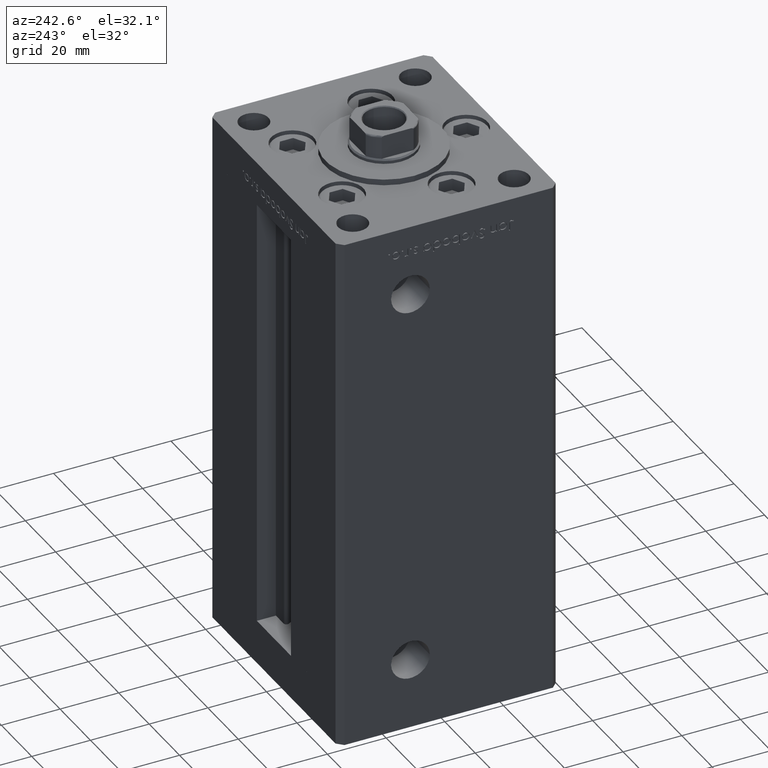
[diagram: clean part render]
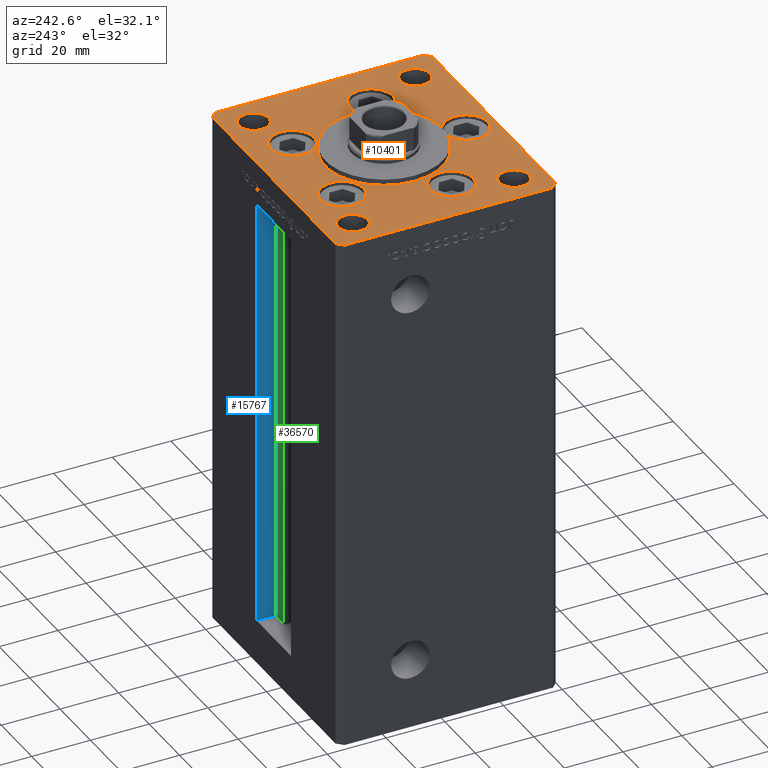
[diagram: same view with three faces highlighted in distinct colors, each labeled with its STEP entity id]
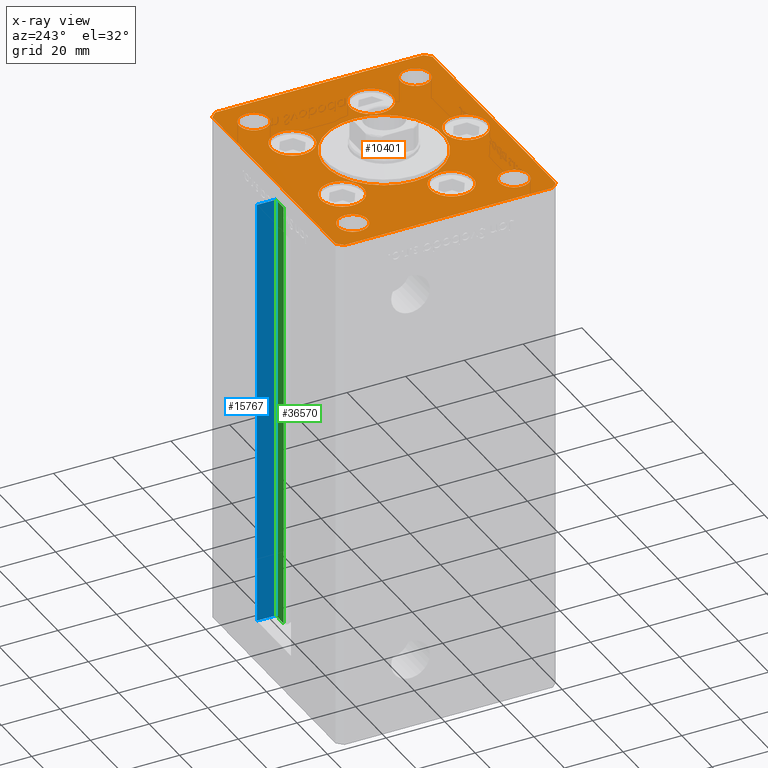
[diagram: x-ray of the same camera — body ghosted, the three highlighted faces saturated]
A machine part, auxiliary view with three faces highlighted in distinct colors.
The next image is the same camera in x-ray (body ghosted, the three faces saturated) — at least one of them is partly hidden behind the body in this view.
Their STEP definitions:

[orange] entity #10401 — the highlighted planar face has unit normal (0, 0, 1).
#31 = DIRECTION ( 'NONE',  ( 0.7071067811865474617, 0.7071067811865474617, 0.000000000000000000 ) ) ;
#75 = ORIENTED_EDGE ( 'NONE', *, *, #47170, .F. ) ;
#181 = EDGE_CURVE ( 'NONE', #37928, #32111, #33576, .T. ) ;
#229 = DIRECTION ( 'NONE',  ( 1.000000000000000000, 0.000000000000000000, 0.000000000000000000 ) ) ;
#453 = VERTEX_POINT ( 'NONE', #44616 ) ;
#454 = CIRCLE ( 'NONE', #13095, 7.249999999999999112 ) ;
#505 = DIRECTION ( 'NONE',  ( -1.000000000000000000, 0.000000000000000000, 0.000000000000000000 ) ) ;
#680 = CARTESIAN_POINT ( 'NONE',  ( -19.14865316429777664, -9.333333333333330373, 0.000000000000000000 ) ) ;
#2475 = EDGE_LOOP ( 'NONE', ( #41356, #44250 ) ) ;
#2526 = FACE_BOUND ( 'NONE', #26732, .T. ) ;
#3142 = ORIENTED_EDGE ( 'NONE', *, *, #35242, .T. ) ;
#3275 = EDGE_CURVE ( 'NONE', #43076, #13449, #52193, .T. ) ;
#3317 = DIRECTION ( 'NONE',  ( 0.000000000000000000, 0.000000000000000000, 1.000000000000000000 ) ) ;
#3474 = ORIENTED_EDGE ( 'NONE', *, *, #22825, .T. ) ;
#4418 = AXIS2_PLACEMENT_3D ( 'NONE', #34037, #37200, #13986 ) ;
#4458 = VERTEX_POINT ( 'NONE', #27502 ) ;
#5051 = VERTEX_POINT ( 'NONE', #45606 ) ;
#5064 = DIRECTION ( 'NONE',  ( 1.000000000000000000, 0.000000000000000000, 0.000000000000000000 ) ) ;
#5100 = CARTESIAN_POINT ( 'NONE',  ( -40.50000000000000711, -37.50000000000003553, 0.000000000000000000 ) ) ;
#5183 = CIRCLE ( 'NONE', #18666, 7.249999999999999112 ) ;
#5408 = EDGE_CURVE ( 'NONE', #5051, #27505, #35963, .T. ) ;
#5438 = FACE_BOUND ( 'NONE', #8538, .T. ) ;
#5691 = ORIENTED_EDGE ( 'NONE', *, *, #42461, .F. ) ;
#6230 = CARTESIAN_POINT ( 'NONE',  ( -42.50000000000000000, -35.50000000000004263, 0.000000000000000000 ) ) ;
#6318 = AXIS2_PLACEMENT_3D ( 'NONE', #39315, #38791, #43275 ) ;
#6448 = ORIENTED_EDGE ( 'NONE', *, *, #27086, .T. ) ;
#6681 = DIRECTION ( 'NONE',  ( 9.773090005503145261E-17, 1.000000000000000000, 0.000000000000000000 ) ) ;
#7164 = CARTESIAN_POINT ( 'NONE',  ( 40.50000000000001421, -37.49999999999992184, 0.000000000000000000 ) ) ;
#7232 = EDGE_LOOP ( 'NONE', ( #35742, #46311 ) ) ;
#8062 = CIRCLE ( 'NONE', #45100, 4.999999999999997335 ) ;
#8118 = VERTEX_POINT ( 'NONE', #34809 ) ;
#8151 = DIRECTION ( 'NONE',  ( 0.000000000000000000, 0.000000000000000000, 1.000000000000000000 ) ) ;
#8152 = CARTESIAN_POINT ( 'NONE',  ( -9.072913342905442491, 22.74999999999999289, 0.000000000000000000 ) ) ;
#8327 = CARTESIAN_POINT ( 'NONE',  ( -40.50000000000000000, 37.49999999999997158, 0.000000000000000000 ) ) ;
#8538 = EDGE_LOOP ( 'NONE', ( #34932, #6448 ) ) ;
#8735 = DIRECTION ( 'NONE',  ( 0.000000000000000000, 0.000000000000000000, 1.000000000000000000 ) ) ;
#8980 = DIRECTION ( 'NONE',  ( 1.000000000000000000, 0.000000000000000000, 0.000000000000000000 ) ) ;
#9139 = EDGE_CURVE ( 'NONE', #38332, #22558, #21203, .T. ) ;
#9215 = AXIS2_PLACEMENT_3D ( 'NONE', #12876, #45559, #229 ) ;
#9250 = ORIENTED_EDGE ( 'NONE', *, *, #5408, .T. ) ;
#9288 = VERTEX_POINT ( 'NONE', #37672 ) ;
#9672 = DIRECTION ( 'NONE',  ( -0.000000000000000000, 0.000000000000000000, 1.000000000000000000 ) ) ;
#10189 = LINE ( 'NONE', #6230, #17202 ) ;
#10307 = EDGE_LOOP ( 'NONE', ( #75, #27924 ) ) ;
#10401 = ADVANCED_FACE ( 'NONE', ( #34451, #50545, #34203, #29967, #42634, #13617, #2526, #29700, #14406, #34713, #5438 ), #30224, .T. ) ;
#11037 = CARTESIAN_POINT ( 'NONE',  ( 9.072913342905442491, 22.74999999999999289, 0.000000000000000000 ) ) ;
#11070 = VERTEX_POINT ( 'NONE', #12407 ) ;
#11106 = AXIS2_PLACEMENT_3D ( 'NONE', #15283, #27673, #38313 ) ;
#11293 = EDGE_LOOP ( 'NONE', ( #21438, #32993 ) ) ;
#11327 = CARTESIAN_POINT ( 'NONE',  ( 19.14865316429777664, -9.333333333333328596, 0.000000000000000000 ) ) ;
#11367 = CARTESIAN_POINT ( 'NONE',  ( -7.250000000000000000, -28.00000000000000000, 0.000000000000000000 ) ) ;
#11412 = VECTOR ( 'NONE', #27325, 1000.000000000000000 ) ;
#11513 = DIRECTION ( 'NONE',  ( 1.000000000000000000, 0.000000000000000000, 0.000000000000000000 ) ) ;
#12003 = CIRCLE ( 'NONE', #4418, 7.249999999999999112 ) ;
#12328 = VERTEX_POINT ( 'NONE', #34314 ) ;
#12407 = CARTESIAN_POINT ( 'NONE',  ( 27.50000000000000355, -27.50000000000000355, 0.000000000000000000 ) ) ;
#12540 = ORIENTED_EDGE ( 'NONE', *, *, #46966, .T. ) ;
#12599 = CARTESIAN_POINT ( 'NONE',  ( -37.50000000000000711, 27.50000000000000711, 0.000000000000000000 ) ) ;
#12737 = ORIENTED_EDGE ( 'NONE', *, *, #42029, .F. ) ;
#12783 = CIRCLE ( 'NONE', #22878, 5.000000000000000888 ) ;
#12860 = AXIS2_PLACEMENT_3D ( 'NONE', #33866, #25407, #25144 ) ;
#12876 = CARTESIAN_POINT ( 'NONE',  ( 16.32291334290544071, 22.74999999999999289, 0.000000000000000000 ) ) ;
#12881 = CARTESIAN_POINT ( 'NONE',  ( 27.50000000000000355, 27.49999999999999645, 0.000000000000000000 ) ) ;
#12946 = CIRCLE ( 'NONE', #14648, 4.999999999999997335 ) ;
#13087 = EDGE_CURVE ( 'NONE', #17284, #30587, #23813, .T. ) ;
#13095 = AXIS2_PLACEMENT_3D ( 'NONE', #35370, #35901, #48032 ) ;
#13449 = VERTEX_POINT ( 'NONE', #11037 ) ;
#13617 = FACE_BOUND ( 'NONE', #50651, .T. ) ;
#13797 = CARTESIAN_POINT ( 'NONE',  ( 32.50000000000000000, -27.50000000000000355, 0.000000000000000000 ) ) ;
#13986 = DIRECTION ( 'NONE',  ( 1.000000000000000000, 0.000000000000000000, 0.000000000000000000 ) ) ;
#14289 = VECTOR ( 'NONE', #39969, 1000.000000000000000 ) ;
#14406 = FACE_BOUND ( 'NONE', #50228, .T. ) ;
#14648 = AXIS2_PLACEMENT_3D ( 'NONE', #40084, #16576, #505 ) ;
#14890 = EDGE_CURVE ( 'NONE', #48897, #11070, #12946, .T. ) ;
#15283 = CARTESIAN_POINT ( 'NONE',  ( -32.50000000000000000, 27.50000000000000711, 0.000000000000000000 ) ) ;
#15387 = DIRECTION ( 'NONE',  ( 0.000000000000000000, 0.000000000000000000, 1.000000000000000000 ) ) ;
#15633 = CARTESIAN_POINT ( 'NONE',  ( 42.50000000000000711, -35.49999999999992895, 0.000000000000000000 ) ) ;
#16307 = DIRECTION ( 'NONE',  ( 1.000000000000000000, 0.000000000000000000, 0.000000000000000000 ) ) ;
#16314 = CARTESIAN_POINT ( 'NONE',  ( -26.39865316429777664, -9.333333333333330373, 0.000000000000000000 ) ) ;
#16491 = LINE ( 'NONE', #8327, #11412 ) ;
#16576 = DIRECTION ( 'NONE',  ( -0.000000000000000000, -0.000000000000000000, -1.000000000000000000 ) ) ;
#16992 = CIRCLE ( 'NONE', #41448, 5.000000000000004441 ) ;
#17202 = VECTOR ( 'NONE', #26263, 1000.000000000000000 ) ;
#17209 = DIRECTION ( 'NONE',  ( -0.000000000000000000, -0.000000000000000000, -1.000000000000000000 ) ) ;
#17284 = VERTEX_POINT ( 'NONE', #11327 ) ;
#17628 = EDGE_CURVE ( 'NONE', #20074, #453, #34739, .T. ) ;
#18186 = CARTESIAN_POINT ( 'NONE',  ( -32.50000000000000000, 27.50000000000000711, 0.000000000000000000 ) ) ;
#18188 = ORIENTED_EDGE ( 'NONE', *, *, #41911, .F. ) ;
#18552 = VERTEX_POINT ( 'NONE', #680 ) ;
#18666 = AXIS2_PLACEMENT_3D ( 'NONE', #30054, #21860, #42724 ) ;
#19143 = DIRECTION ( 'NONE',  ( -1.000000000000000000, -4.283267841918041508E-16, 0.000000000000000000 ) ) ;
#20047 = DIRECTION ( 'NONE',  ( 9.773090005503134168E-17, -1.000000000000000000, 0.000000000000000000 ) ) ;
#20058 = LINE ( 'NONE', #7164, #41419 ) ;
#20074 = VERTEX_POINT ( 'NONE', #38239 ) ;
#20683 = DIRECTION ( 'NONE',  ( 1.000000000000000000, 0.000000000000000000, 0.000000000000000000 ) ) ;
#20893 = CARTESIAN_POINT ( 'NONE',  ( 37.50000000000000000, 27.49999999999999645, 0.000000000000000000 ) ) ;
#21203 = CIRCLE ( 'NONE', #11106, 5.000000000000004441 ) ;
#21365 = VERTEX_POINT ( 'NONE', #39670 ) ;
#21426 = CARTESIAN_POINT ( 'NONE',  ( 37.50000000000000000, -27.50000000000000355, 0.000000000000000000 ) ) ;
#21438 = ORIENTED_EDGE ( 'NONE', *, *, #45108, .F. ) ;
#21516 = DIRECTION ( 'NONE',  ( 1.000000000000000000, 0.000000000000000000, 0.000000000000000000 ) ) ;
#21838 = CARTESIAN_POINT ( 'NONE',  ( 33.64865316429777664, -9.333333333333330373, 0.000000000000000000 ) ) ;
#21860 = DIRECTION ( 'NONE',  ( 0.000000000000000000, 0.000000000000000000, 1.000000000000000000 ) ) ;
#21885 = CARTESIAN_POINT ( 'NONE',  ( 42.50000000000001421, 35.50000000000002132, 0.000000000000000000 ) ) ;
#22141 = ORIENTED_EDGE ( 'NONE', *, *, #24335, .F. ) ;
#22233 = CARTESIAN_POINT ( 'NONE',  ( -26.39865316429777664, -9.333333333333330373, 0.000000000000000000 ) ) ;
#22558 = VERTEX_POINT ( 'NONE', #12599 ) ;
#22825 = EDGE_CURVE ( 'NONE', #29092, #40767, #10189, .T. ) ;
#22878 = AXIS2_PLACEMENT_3D ( 'NONE', #44795, #45299, #16307 ) ;
#22894 = DIRECTION ( 'NONE',  ( 0.000000000000000000, 0.000000000000000000, 1.000000000000000000 ) ) ;
#23030 = VERTEX_POINT ( 'NONE', #11367 ) ;
#23062 = EDGE_CURVE ( 'NONE', #23030, #21365, #45889, .T. ) ;
#23290 = CARTESIAN_POINT ( 'NONE',  ( 0.000000000000000000, -28.00000000000000000, 0.000000000000000000 ) ) ;
#23307 = ORIENTED_EDGE ( 'NONE', *, *, #3275, .F. ) ;
#23554 = ORIENTED_EDGE ( 'NONE', *, *, #41663, .T. ) ;
#23813 = CIRCLE ( 'NONE', #37306, 7.249999999999999112 ) ;
#23851 = CARTESIAN_POINT ( 'NONE',  ( -40.50000000000000711, -37.50000000000003553, 0.000000000000000000 ) ) ;
#24296 = AXIS2_PLACEMENT_3D ( 'NONE', #13797, #17209, #33321 ) ;
#24335 = EDGE_CURVE ( 'NONE', #13449, #43076, #454, .T. ) ;
#24628 = EDGE_CURVE ( 'NONE', #453, #4458, #16491, .T. ) ;
#24687 = EDGE_CURVE ( 'NONE', #32111, #37928, #8062, .T. ) ;
#24894 = DIRECTION ( 'NONE',  ( 0.000000000000000000, 0.000000000000000000, 1.000000000000000000 ) ) ;
#25144 = DIRECTION ( 'NONE',  ( 1.000000000000000000, 0.000000000000000000, 0.000000000000000000 ) ) ;
#25406 = DIRECTION ( 'NONE',  ( 0.000000000000000000, 0.000000000000000000, 1.000000000000000000 ) ) ;
#25407 = DIRECTION ( 'NONE',  ( 0.000000000000000000, 0.000000000000000000, 1.000000000000000000 ) ) ;
#25472 = EDGE_CURVE ( 'NONE', #8118, #49818, #27428, .T. ) ;
#26189 = CARTESIAN_POINT ( 'NONE',  ( -37.50000000000000711, -27.50000000000000355, 0.000000000000000000 ) ) ;
#26199 = DIRECTION ( 'NONE',  ( 1.000000000000000000, 0.000000000000000000, 0.000000000000000000 ) ) ;
#26263 = DIRECTION ( 'NONE',  ( 0.7071067811865487940, -0.7071067811865463515, 0.000000000000000000 ) ) ;
#26325 = CIRCLE ( 'NONE', #12860, 20.00000000000000000 ) ;
#26702 = EDGE_CURVE ( 'NONE', #22558, #38332, #16992, .T. ) ;
#26732 = EDGE_LOOP ( 'NONE', ( #44941, #46710 ) ) ;
#26753 = DIRECTION ( 'NONE',  ( 1.000000000000000000, 0.000000000000000000, 0.000000000000000000 ) ) ;
#26836 = AXIS2_PLACEMENT_3D ( 'NONE', #35988, #52066, #26753 ) ;
#27080 = VECTOR ( 'NONE', #20047, 1000.000000000000000 ) ;
#27086 = EDGE_CURVE ( 'NONE', #11070, #48897, #31878, .T. ) ;
#27130 = CARTESIAN_POINT ( 'NONE',  ( -32.50000000000000000, -27.50000000000000355, 0.000000000000000000 ) ) ;
#27191 = LINE ( 'NONE', #43802, #27080 ) ;
#27325 = DIRECTION ( 'NONE',  ( -0.7071067811865536790, -0.7071067811865414665, 0.000000000000000000 ) ) ;
#27428 = CIRCLE ( 'NONE', #44320, 20.00000000000000000 ) ;
#27502 = CARTESIAN_POINT ( 'NONE',  ( -42.50000000000000711, 35.50000000000000000, 0.000000000000000000 ) ) ;
#27505 = VERTEX_POINT ( 'NONE', #21885 ) ;
#27605 = ORIENTED_EDGE ( 'NONE', *, *, #37384, .T. ) ;
#27673 = DIRECTION ( 'NONE',  ( -0.000000000000000000, -0.000000000000000000, -1.000000000000000000 ) ) ;
#27921 = DIRECTION ( 'NONE',  ( 1.000000000000000000, 0.000000000000000000, 0.000000000000000000 ) ) ;
#27924 = ORIENTED_EDGE ( 'NONE', *, *, #43512, .F. ) ;
#29092 = VERTEX_POINT ( 'NONE', #31486 ) ;
#29700 = FACE_BOUND ( 'NONE', #2475, .T. ) ;
#29809 = DIRECTION ( 'NONE',  ( -0.000000000000000000, -0.000000000000000000, -1.000000000000000000 ) ) ;
#29967 = FACE_BOUND ( 'NONE', #7232, .T. ) ;
#30054 = CARTESIAN_POINT ( 'NONE',  ( -16.32291334290544071, 22.74999999999999289, 0.000000000000000000 ) ) ;
#30195 = CARTESIAN_POINT ( 'NONE',  ( 23.57291334290544071, 22.74999999999999289, 0.000000000000000000 ) ) ;
#30224 = PLANE ( 'NONE',  #35546 ) ;
#30262 = EDGE_LOOP ( 'NONE', ( #5691, #40998 ) ) ;
#30491 = CARTESIAN_POINT ( 'NONE',  ( 0.000000000000000000, 0.000000000000000000, 0.000000000000000000 ) ) ;
#30587 = VERTEX_POINT ( 'NONE', #21838 ) ;
#31486 = CARTESIAN_POINT ( 'NONE',  ( -42.50000000000000000, -35.50000000000004263, 0.000000000000000000 ) ) ;
#31665 = CARTESIAN_POINT ( 'NONE',  ( 40.50000000000001421, -37.49999999999992184, 0.000000000000000000 ) ) ;
#31782 = CARTESIAN_POINT ( 'NONE',  ( -20.00000000000000000, -6.938893903907228378E-15, 0.000000000000000000 ) ) ;
#31878 = CIRCLE ( 'NONE', #24296, 4.999999999999997335 ) ;
#32023 = AXIS2_PLACEMENT_3D ( 'NONE', #16314, #8151, #27921 ) ;
#32079 = VERTEX_POINT ( 'NONE', #8152 ) ;
#32111 = VERTEX_POINT ( 'NONE', #12881 ) ;
#32437 = VERTEX_POINT ( 'NONE', #50260 ) ;
#32542 = CARTESIAN_POINT ( 'NONE',  ( 0.000000000000000000, -6.938893903907228378E-15, 0.000000000000000000 ) ) ;
#32734 = CARTESIAN_POINT ( 'NONE',  ( 26.39865316429777664, -9.333333333333330373, 0.000000000000000000 ) ) ;
#32848 = VECTOR ( 'NONE', #38960, 1000.000000000000000 ) ;
#32992 = AXIS2_PLACEMENT_3D ( 'NONE', #23290, #15387, #39402 ) ;
#32993 = ORIENTED_EDGE ( 'NONE', *, *, #25472, .F. ) ;
#33024 = AXIS2_PLACEMENT_3D ( 'NONE', #32734, #8735, #8980 ) ;
#33321 = DIRECTION ( 'NONE',  ( -1.000000000000000000, 0.000000000000000000, 0.000000000000000000 ) ) ;
#33576 = CIRCLE ( 'NONE', #26836, 4.999999999999997335 ) ;
#33866 = CARTESIAN_POINT ( 'NONE',  ( 0.000000000000000000, -6.938893903907228378E-15, 0.000000000000000000 ) ) ;
#34037 = CARTESIAN_POINT ( 'NONE',  ( -16.32291334290544071, 22.74999999999999289, 0.000000000000000000 ) ) ;
#34132 = ORIENTED_EDGE ( 'NONE', *, *, #24628, .T. ) ;
#34203 = FACE_BOUND ( 'NONE', #48281, .T. ) ;
#34302 = DIRECTION ( 'NONE',  ( -1.000000000000000000, 0.000000000000000000, 0.000000000000000000 ) ) ;
#34314 = CARTESIAN_POINT ( 'NONE',  ( -33.64865316429777664, -9.333333333333328596, 0.000000000000000000 ) ) ;
#34451 = FACE_BOUND ( 'NONE', #11293, .T. ) ;
#34713 = FACE_OUTER_BOUND ( 'NONE', #49389, .T. ) ;
#34739 = LINE ( 'NONE', #42660, #49130 ) ;
#34807 = AXIS2_PLACEMENT_3D ( 'NONE', #22233, #25406, #26199 ) ;
#34809 = CARTESIAN_POINT ( 'NONE',  ( 20.00000000000000000, -4.489600305612522259E-15, 0.000000000000000000 ) ) ;
#34932 = ORIENTED_EDGE ( 'NONE', *, *, #14890, .T. ) ;
#35242 = EDGE_CURVE ( 'NONE', #40767, #35466, #36009, .T. ) ;
#35370 = CARTESIAN_POINT ( 'NONE',  ( 16.32291334290544071, 22.74999999999999289, 0.000000000000000000 ) ) ;
#35466 = VERTEX_POINT ( 'NONE', #31665 ) ;
#35526 = CIRCLE ( 'NONE', #49870, 5.000000000000000888 ) ;
#35546 = AXIS2_PLACEMENT_3D ( 'NONE', #30491, #9672, #21516 ) ;
#35742 = ORIENTED_EDGE ( 'NONE', *, *, #47879, .F. ) ;
#35901 = DIRECTION ( 'NONE',  ( 0.000000000000000000, 0.000000000000000000, 1.000000000000000000 ) ) ;
#35963 = LINE ( 'NONE', #15633, #37114 ) ;
#35988 = CARTESIAN_POINT ( 'NONE',  ( 32.50000000000000000, 27.49999999999999645, 0.000000000000000000 ) ) ;
#36009 = LINE ( 'NONE', #23851, #14289 ) ;
#37060 = CIRCLE ( 'NONE', #32023, 7.249999999999999112 ) ;
#37114 = VECTOR ( 'NONE', #6681, 1000.000000000000000 ) ;
#37200 = DIRECTION ( 'NONE',  ( 0.000000000000000000, 0.000000000000000000, 1.000000000000000000 ) ) ;
#37203 = EDGE_CURVE ( 'NONE', #18552, #12328, #37060, .T. ) ;
#37306 = AXIS2_PLACEMENT_3D ( 'NONE', #37558, #24894, #20683 ) ;
#37384 = EDGE_CURVE ( 'NONE', #27505, #20074, #38696, .T. ) ;
#37541 = ORIENTED_EDGE ( 'NONE', *, *, #17628, .T. ) ;
#37558 = CARTESIAN_POINT ( 'NONE',  ( 26.39865316429777664, -9.333333333333330373, 0.000000000000000000 ) ) ;
#37672 = CARTESIAN_POINT ( 'NONE',  ( -23.57291334290544071, 22.74999999999999289, 0.000000000000000000 ) ) ;
#37928 = VERTEX_POINT ( 'NONE', #20893 ) ;
#38190 = CARTESIAN_POINT ( 'NONE',  ( 42.50000000000001421, 35.50000000000002132, 0.000000000000000000 ) ) ;
#38239 = CARTESIAN_POINT ( 'NONE',  ( 40.50000000000000711, 37.50000000000000711, 0.000000000000000000 ) ) ;
#38313 = DIRECTION ( 'NONE',  ( -1.000000000000000000, 0.000000000000000000, 0.000000000000000000 ) ) ;
#38332 = VERTEX_POINT ( 'NONE', #43966 ) ;
#38696 = LINE ( 'NONE', #38190, #32848 ) ;
#38791 = DIRECTION ( 'NONE',  ( 0.000000000000000000, 0.000000000000000000, 1.000000000000000000 ) ) ;
#38960 = DIRECTION ( 'NONE',  ( -0.7071067811865524577, 0.7071067811865426878, 0.000000000000000000 ) ) ;
#39315 = CARTESIAN_POINT ( 'NONE',  ( 0.000000000000000000, -28.00000000000000000, 0.000000000000000000 ) ) ;
#39402 = DIRECTION ( 'NONE',  ( 1.000000000000000000, 0.000000000000000000, 0.000000000000000000 ) ) ;
#39670 = CARTESIAN_POINT ( 'NONE',  ( 7.250000000000000000, -28.00000000000000000, 0.000000000000000000 ) ) ;
#39969 = DIRECTION ( 'NONE',  ( 1.000000000000000000, 1.370645709413773283E-15, 0.000000000000000000 ) ) ;
#40084 = CARTESIAN_POINT ( 'NONE',  ( 32.50000000000000000, -27.50000000000000355, 0.000000000000000000 ) ) ;
#40515 = CARTESIAN_POINT ( 'NONE',  ( 32.50000000000000000, 27.49999999999999645, 0.000000000000000000 ) ) ;
#40767 = VERTEX_POINT ( 'NONE', #5100 ) ;
#40998 = ORIENTED_EDGE ( 'NONE', *, *, #23062, .F. ) ;
#41356 = ORIENTED_EDGE ( 'NONE', *, *, #181, .F. ) ;
#41419 = VECTOR ( 'NONE', #31, 1000.000000000000114 ) ;
#41448 = AXIS2_PLACEMENT_3D ( 'NONE', #18186, #29809, #34302 ) ;
#41663 = EDGE_CURVE ( 'NONE', #4458, #29092, #27191, .T. ) ;
#41911 = EDGE_CURVE ( 'NONE', #50035, #32437, #35526, .T. ) ;
#42029 = EDGE_CURVE ( 'NONE', #32437, #50035, #12783, .T. ) ;
#42058 = ORIENTED_EDGE ( 'NONE', *, *, #50907, .F. ) ;
#42377 = CIRCLE ( 'NONE', #34807, 7.249999999999999112 ) ;
#42461 = EDGE_CURVE ( 'NONE', #21365, #23030, #50698, .T. ) ;
#42489 = ORIENTED_EDGE ( 'NONE', *, *, #37203, .F. ) ;
#42634 = FACE_BOUND ( 'NONE', #30262, .T. ) ;
#42660 = CARTESIAN_POINT ( 'NONE',  ( 40.50000000000000711, 37.50000000000000711, 0.000000000000000000 ) ) ;
#42724 = DIRECTION ( 'NONE',  ( 1.000000000000000000, 0.000000000000000000, 0.000000000000000000 ) ) ;
#43076 = VERTEX_POINT ( 'NONE', #30195 ) ;
#43275 = DIRECTION ( 'NONE',  ( 1.000000000000000000, 0.000000000000000000, 0.000000000000000000 ) ) ;
#43484 = DIRECTION ( 'NONE',  ( 1.000000000000000000, 0.000000000000000000, 0.000000000000000000 ) ) ;
#43512 = EDGE_CURVE ( 'NONE', #9288, #32079, #12003, .T. ) ;
#43802 = CARTESIAN_POINT ( 'NONE',  ( -42.50000000000000711, 35.50000000000000000, 0.000000000000000000 ) ) ;
#43966 = CARTESIAN_POINT ( 'NONE',  ( -27.50000000000000000, 27.50000000000000711, 0.000000000000000000 ) ) ;
#44250 = ORIENTED_EDGE ( 'NONE', *, *, #24687, .F. ) ;
#44320 = AXIS2_PLACEMENT_3D ( 'NONE', #32542, #44676, #5064 ) ;
#44616 = CARTESIAN_POINT ( 'NONE',  ( -40.50000000000000000, 37.49999999999997158, 0.000000000000000000 ) ) ;
#44676 = DIRECTION ( 'NONE',  ( 0.000000000000000000, 0.000000000000000000, 1.000000000000000000 ) ) ;
#44795 = CARTESIAN_POINT ( 'NONE',  ( -32.50000000000000000, -27.50000000000000355, 0.000000000000000000 ) ) ;
#44941 = ORIENTED_EDGE ( 'NONE', *, *, #9139, .T. ) ;
#45100 = AXIS2_PLACEMENT_3D ( 'NONE', #40515, #3317, #11513 ) ;
#45108 = EDGE_CURVE ( 'NONE', #49818, #8118, #26325, .T. ) ;
#45299 = DIRECTION ( 'NONE',  ( 0.000000000000000000, 0.000000000000000000, 1.000000000000000000 ) ) ;
#45559 = DIRECTION ( 'NONE',  ( 0.000000000000000000, 0.000000000000000000, 1.000000000000000000 ) ) ;
#45606 = CARTESIAN_POINT ( 'NONE',  ( 42.50000000000000711, -35.49999999999992895, 0.000000000000000000 ) ) ;
#45889 = CIRCLE ( 'NONE', #6318, 7.250000000000000000 ) ;
#46311 = ORIENTED_EDGE ( 'NONE', *, *, #13087, .F. ) ;
#46710 = ORIENTED_EDGE ( 'NONE', *, *, #26702, .T. ) ;
#46966 = EDGE_CURVE ( 'NONE', #35466, #5051, #20058, .T. ) ;
#47170 = EDGE_CURVE ( 'NONE', #32079, #9288, #5183, .T. ) ;
#47879 = EDGE_CURVE ( 'NONE', #30587, #17284, #50733, .T. ) ;
#48032 = DIRECTION ( 'NONE',  ( 1.000000000000000000, 0.000000000000000000, 0.000000000000000000 ) ) ;
#48281 = EDGE_LOOP ( 'NONE', ( #23307, #22141 ) ) ;
#48897 = VERTEX_POINT ( 'NONE', #21426 ) ;
#49130 = VECTOR ( 'NONE', #19143, 1000.000000000000000 ) ;
#49389 = EDGE_LOOP ( 'NONE', ( #3474, #3142, #12540, #9250, #27605, #37541, #34132, #23554 ) ) ;
#49818 = VERTEX_POINT ( 'NONE', #31782 ) ;
#49870 = AXIS2_PLACEMENT_3D ( 'NONE', #27130, #22894, #43484 ) ;
#50035 = VERTEX_POINT ( 'NONE', #26189 ) ;
#50228 = EDGE_LOOP ( 'NONE', ( #12737, #18188 ) ) ;
#50260 = CARTESIAN_POINT ( 'NONE',  ( -27.50000000000000000, -27.50000000000000355, 0.000000000000000000 ) ) ;
#50545 = FACE_BOUND ( 'NONE', #10307, .T. ) ;
#50651 = EDGE_LOOP ( 'NONE', ( #42489, #42058 ) ) ;
#50698 = CIRCLE ( 'NONE', #32992, 7.250000000000000000 ) ;
#50733 = CIRCLE ( 'NONE', #33024, 7.249999999999999112 ) ;
#50907 = EDGE_CURVE ( 'NONE', #12328, #18552, #42377, .T. ) ;
#52066 = DIRECTION ( 'NONE',  ( 0.000000000000000000, 0.000000000000000000, 1.000000000000000000 ) ) ;
#52193 = CIRCLE ( 'NONE', #9215, 7.249999999999999112 ) ;

[blue] entity #15767 — the highlighted planar face has unit normal (1, 0, 0).
#521 = EDGE_CURVE ( 'NONE', #50308, #47724, #8737, .T. ) ;
#4434 = EDGE_LOOP ( 'NONE', ( #21197, #13789, #12547, #20012 ) ) ;
#4958 = CARTESIAN_POINT ( 'NONE',  ( 11.25000000000000000, 30.99999999999999289, 0.000000000000000000 ) ) ;
#5052 = VERTEX_POINT ( 'NONE', #17618 ) ;
#8737 = LINE ( 'NONE', #48331, #31889 ) ;
#12547 = ORIENTED_EDGE ( 'NONE', *, *, #39723, .T. ) ;
#13789 = ORIENTED_EDGE ( 'NONE', *, *, #39106, .F. ) ;
#15767 = ADVANCED_FACE ( 'NONE', ( #24756 ), #25005, .F. ) ;
#16853 = VECTOR ( 'NONE', #30539, 1000.000000000000000 ) ;
#17618 = CARTESIAN_POINT ( 'NONE',  ( 11.25000000000000000, 30.99999999999999289, 0.000000000000000000 ) ) ;
#20012 = ORIENTED_EDGE ( 'NONE', *, *, #521, .F. ) ;
#20091 = CARTESIAN_POINT ( 'NONE',  ( 11.24999999999999289, 37.50000000000000000, 148.5000000000000000 ) ) ;
#21197 = ORIENTED_EDGE ( 'NONE', *, *, #41633, .F. ) ;
#22266 = CARTESIAN_POINT ( 'NONE',  ( 11.25000000000000000, 37.50000000000000000, 0.000000000000000000 ) ) ;
#23221 = LINE ( 'NONE', #28243, #34657 ) ;
#24756 = FACE_OUTER_BOUND ( 'NONE', #4434, .T. ) ;
#24884 = LINE ( 'NONE', #40989, #25323 ) ;
#25005 = PLANE ( 'NONE',  #38223 ) ;
#25172 = VERTEX_POINT ( 'NONE', #22266 ) ;
#25323 = VECTOR ( 'NONE', #38344, 1000.000000000000000 ) ;
#28243 = CARTESIAN_POINT ( 'NONE',  ( 11.25000000000000000, 37.50000000000000000, 0.000000000000000000 ) ) ;
#30539 = DIRECTION ( 'NONE',  ( 0.000000000000000000, 1.000000000000000000, 0.000000000000000000 ) ) ;
#31889 = VECTOR ( 'NONE', #44364, 1000.000000000000000 ) ;
#31934 = DIRECTION ( 'NONE',  ( -0.000000000000000000, -0.000000000000000000, 1.000000000000000000 ) ) ;
#33197 = DIRECTION ( 'NONE',  ( 1.000000000000000000, -0.000000000000000000, 0.000000000000000000 ) ) ;
#34657 = VECTOR ( 'NONE', #31934, 1000.000000000000000 ) ;
#35393 = CARTESIAN_POINT ( 'NONE',  ( 11.25000000000000000, 30.99999999999999289, 148.5000000000000000 ) ) ;
#38223 = AXIS2_PLACEMENT_3D ( 'NONE', #4958, #33197, #41115 ) ;
#38344 = DIRECTION ( 'NONE',  ( -0.000000000000000000, -0.000000000000000000, 1.000000000000000000 ) ) ;
#39106 = EDGE_CURVE ( 'NONE', #5052, #25172, #42936, .T. ) ;
#39723 = EDGE_CURVE ( 'NONE', #5052, #47724, #24884, .T. ) ;
#40989 = CARTESIAN_POINT ( 'NONE',  ( 11.25000000000000000, 30.99999999999999289, 0.000000000000000000 ) ) ;
#41115 = DIRECTION ( 'NONE',  ( 0.000000000000000000, 0.000000000000000000, -1.000000000000000000 ) ) ;
#41633 = EDGE_CURVE ( 'NONE', #25172, #50308, #23221, .T. ) ;
#42936 = LINE ( 'NONE', #50596, #16853 ) ;
#44364 = DIRECTION ( 'NONE',  ( -0.000000000000000000, -1.000000000000000000, 0.000000000000000000 ) ) ;
#47724 = VERTEX_POINT ( 'NONE', #35393 ) ;
#48331 = CARTESIAN_POINT ( 'NONE',  ( 11.25000000000000000, 0.000000000000000000, 148.5000000000000000 ) ) ;
#50308 = VERTEX_POINT ( 'NONE', #20091 ) ;
#50596 = CARTESIAN_POINT ( 'NONE',  ( 11.25000000000000000, 30.99999999999999289, 0.000000000000000000 ) ) ;

[green] entity #36570 — the highlighted planar face has unit normal (0, -1, 0).
#2550 = ORIENTED_EDGE ( 'NONE', *, *, #18018, .T. ) ;
#3653 = DIRECTION ( 'NONE',  ( 0.000000000000000000, -0.000000000000000000, -1.000000000000000000 ) ) ;
#5052 = VERTEX_POINT ( 'NONE', #17618 ) ;
#6396 = CARTESIAN_POINT ( 'NONE',  ( 6.183333333333999704, 30.99999999999999289, 0.000000000000000000 ) ) ;
#6854 = ORIENTED_EDGE ( 'NONE', *, *, #39723, .F. ) ;
#7387 = VECTOR ( 'NONE', #33097, 1000.000000000000000 ) ;
#8895 = VERTEX_POINT ( 'NONE', #42871 ) ;
#9565 = CARTESIAN_POINT ( 'NONE',  ( 6.183333333333999704, 30.99999999999999289, 0.000000000000000000 ) ) ;
#10611 = VECTOR ( 'NONE', #17718, 1000.000000000000000 ) ;
#10929 = CARTESIAN_POINT ( 'NONE',  ( 6.183333333333999704, 30.99999999999999289, 148.5000000000000000 ) ) ;
#17618 = CARTESIAN_POINT ( 'NONE',  ( 11.25000000000000000, 30.99999999999999289, 0.000000000000000000 ) ) ;
#17718 = DIRECTION ( 'NONE',  ( 1.000000000000000000, 0.000000000000000000, 0.000000000000000000 ) ) ;
#17815 = VERTEX_POINT ( 'NONE', #10929 ) ;
#18018 = EDGE_CURVE ( 'NONE', #8895, #17815, #20888, .T. ) ;
#20888 = LINE ( 'NONE', #9565, #40708 ) ;
#23952 = PLANE ( 'NONE',  #36249 ) ;
#24884 = LINE ( 'NONE', #40989, #25323 ) ;
#25323 = VECTOR ( 'NONE', #38344, 1000.000000000000000 ) ;
#26416 = EDGE_CURVE ( 'NONE', #8895, #5052, #30395, .T. ) ;
#30395 = LINE ( 'NONE', #6396, #10611 ) ;
#30737 = EDGE_CURVE ( 'NONE', #47724, #17815, #41270, .T. ) ;
#32407 = CARTESIAN_POINT ( 'NONE',  ( 6.183333333333999704, 30.99999999999999289, 0.000000000000000000 ) ) ;
#33097 = DIRECTION ( 'NONE',  ( -1.000000000000000000, 0.000000000000000000, 0.000000000000000000 ) ) ;
#34095 = DIRECTION ( 'NONE',  ( -0.000000000000000000, -0.000000000000000000, 1.000000000000000000 ) ) ;
#35393 = CARTESIAN_POINT ( 'NONE',  ( 11.25000000000000000, 30.99999999999999289, 148.5000000000000000 ) ) ;
#36059 = ORIENTED_EDGE ( 'NONE', *, *, #30737, .F. ) ;
#36249 = AXIS2_PLACEMENT_3D ( 'NONE', #32407, #51925, #3653 ) ;
#36570 = ADVANCED_FACE ( 'NONE', ( #51664 ), #23952, .F. ) ;
#38344 = DIRECTION ( 'NONE',  ( -0.000000000000000000, -0.000000000000000000, 1.000000000000000000 ) ) ;
#39723 = EDGE_CURVE ( 'NONE', #5052, #47724, #24884, .T. ) ;
#40153 = EDGE_LOOP ( 'NONE', ( #6854, #46376, #2550, #36059 ) ) ;
#40708 = VECTOR ( 'NONE', #34095, 1000.000000000000000 ) ;
#40989 = CARTESIAN_POINT ( 'NONE',  ( 11.25000000000000000, 30.99999999999999289, 0.000000000000000000 ) ) ;
#41270 = LINE ( 'NONE', #46012, #7387 ) ;
#42871 = CARTESIAN_POINT ( 'NONE',  ( 6.183333333333999704, 30.99999999999999289, 0.000000000000000000 ) ) ;
#46012 = CARTESIAN_POINT ( 'NONE',  ( 0.000000000000000000, 30.99999999999999289, 148.5000000000000000 ) ) ;
#46376 = ORIENTED_EDGE ( 'NONE', *, *, #26416, .F. ) ;
#47724 = VERTEX_POINT ( 'NONE', #35393 ) ;
#51664 = FACE_OUTER_BOUND ( 'NONE', #40153, .T. ) ;
#51925 = DIRECTION ( 'NONE',  ( 0.000000000000000000, -1.000000000000000000, 0.000000000000000000 ) ) ;